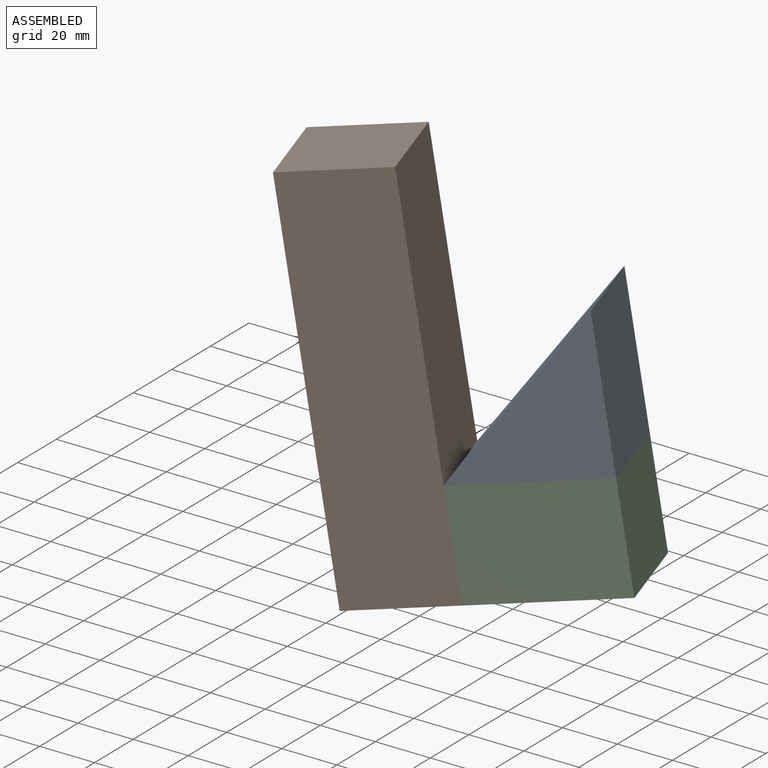
[diagram: assembled view]
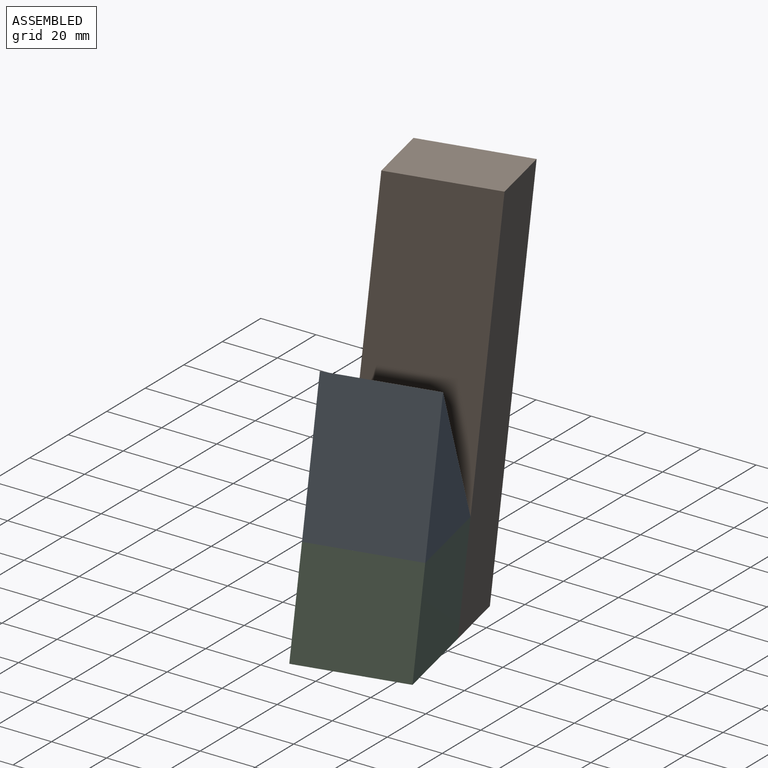
[diagram: assembled view, second angle]
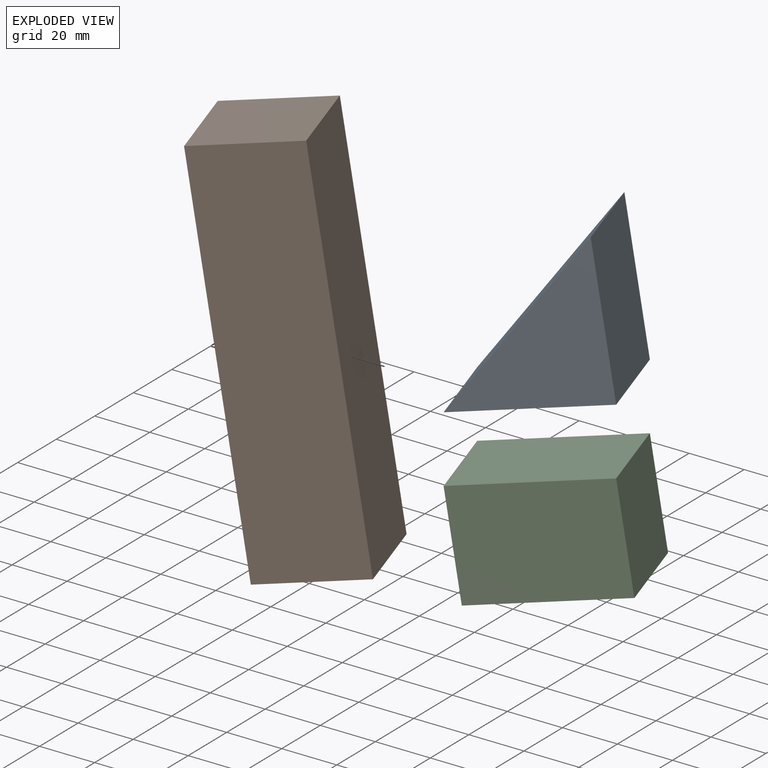
[diagram: exploded view]
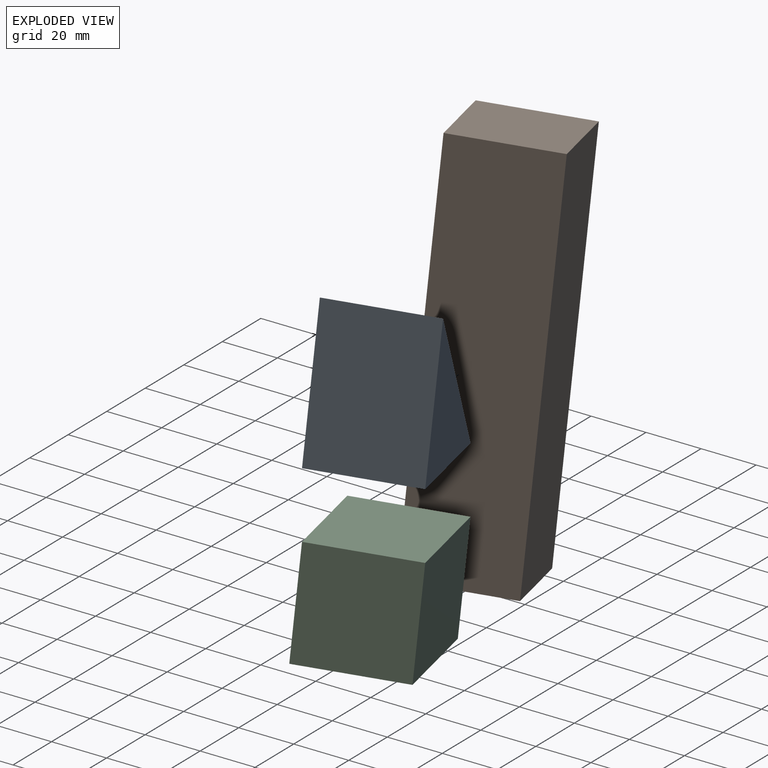
[diagram: exploded view, second angle]
ASSEMBLY  parts=3 mates=8
PART A: 5 faces, bbox 53.8x38.1x53.3 mm
  f0: plane 53.85x53.34mm, normal (0,-1,0), area 1436.1mm2, adj f2,f3,f4
  f1: plane 53.85x53.34mm, normal (0,1,0), area 1436.1mm2, adj f2,f3,f4
  f2: plane 53.34x38.1mm, normal (1,0,0), area 2032.3mm2, adj f0,f1,f3,f4
  f3: plane 53.85x38.1mm, normal (0,0,-1), area 2051.6mm2, adj f0,f1,f2,f4
  f4: plane 53.85x53.34mm, normal (-0.7,0,0.71), area 2887.8mm2, adj f0,f1,f2,f3
PART B: 6 faces, bbox 38.1x38.1x139.7 mm
  f0: plane 139.7x38.1mm, normal (-1,0,0), area 5322.6mm2, adj f1,f3,f4,f5
  f1: plane 38.1x38.1mm, normal (0,0,-1), area 1451.6mm2, adj f0,f2,f4,f5
  f2: plane 139.7x38.1mm, normal (1,0,0), area 5322.6mm2, adj f1,f3,f4,f5
  f3: plane 38.1x38.1mm, normal (0,0,1), area 1451.6mm2, adj f0,f2,f4,f5
  f4: plane 139.7x38.1mm, normal (0,-1,0), area 5322.6mm2, adj f0,f1,f2,f3
  f5: plane 139.7x38.1mm, normal (0,1,0), area 5322.6mm2, adj f0,f1,f2,f3
PART C: 6 faces, bbox 53.8x38.1x38.1 mm
  f0: plane 38.1x38.1mm, normal (-1,0,0), area 1451.6mm2, adj f1,f3,f4,f5
  f1: plane 53.85x38.1mm, normal (0,0,-1), area 2051.6mm2, adj f0,f2,f4,f5
  f2: plane 38.1x38.1mm, normal (1,0,0), area 1451.6mm2, adj f1,f3,f4,f5
  f3: plane 53.85x38.1mm, normal (0,0,1), area 2051.6mm2, adj f0,f2,f4,f5
  f4: plane 53.85x38.1mm, normal (0,-1,0), area 2051.6mm2, adj f0,f1,f2,f3
  f5: plane 53.85x38.1mm, normal (0,1,0), area 2051.6mm2, adj f0,f1,f2,f3
PLACE A rot(axis=(-0.08,-0.44,0.89),22.3deg) t=(-39.16,-11.14,-31.35)mm
PLACE B rot(axis=(0.09,-0.02,-1),160.1deg) t=(-19.71,-46.94,-66.61)mm
PLACE C rot(axis=(-0.08,-0.44,0.89),22.3deg) t=(-32.55,-11.14,-68.87)mm
MATE planar B.f4 <-> C.f5  axis (-0.34,0.94,-0.06) through (-62.31,-17.65,-3.19)mm
MATE planar C.f1 <-> B.f1  axis (0.17,0,-0.98) through (-26.13,-29.04,-67.74)mm
MATE planar A.f3 <-> C.f3  axis (0.17,0,-0.98) through (-7.83,-19.83,-25.82)mm
MATE planar B.f0 <-> C.f0  axis (0.93,0.34,0.16) through (-38.26,-29.04,1.05)mm
MATE planar A.f2 <-> C.f2  axis (0.93,0.34,0.16) through (12.45,-10.62,4.84)mm
MATE planar A.f3 <-> C.f3  axis (0.17,0,-0.98) through (-7.83,-19.83,-25.82)mm
MATE planar C.f4 <-> A.f0  axis (0.34,-0.94,0.06) through (1.89,-37.73,-43.45)mm
MATE planar A.f3 <-> C.f3  axis (0.17,0,-0.98) through (-7.83,-19.83,-25.82)mm
